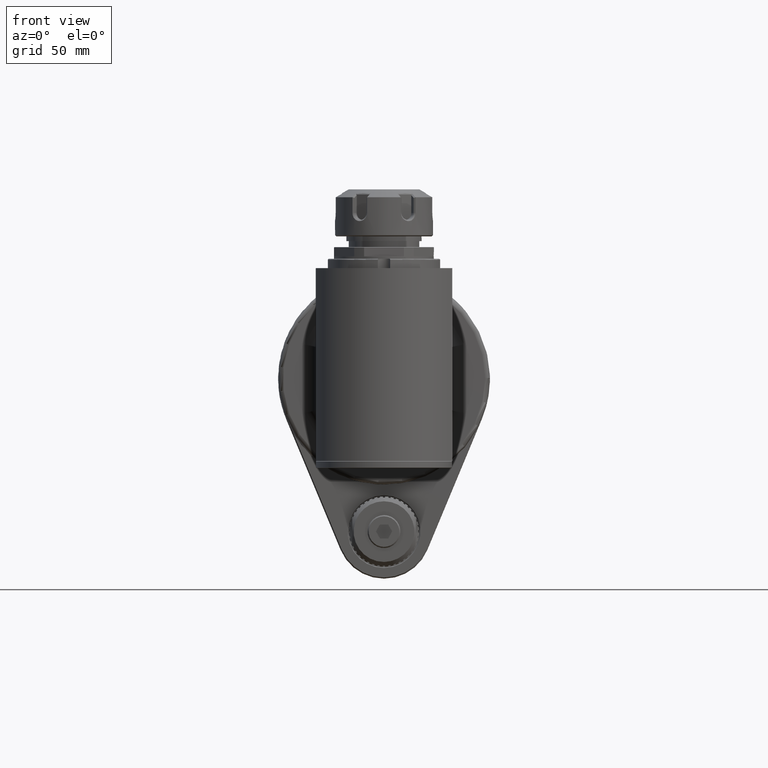
[diagram: clean part render]
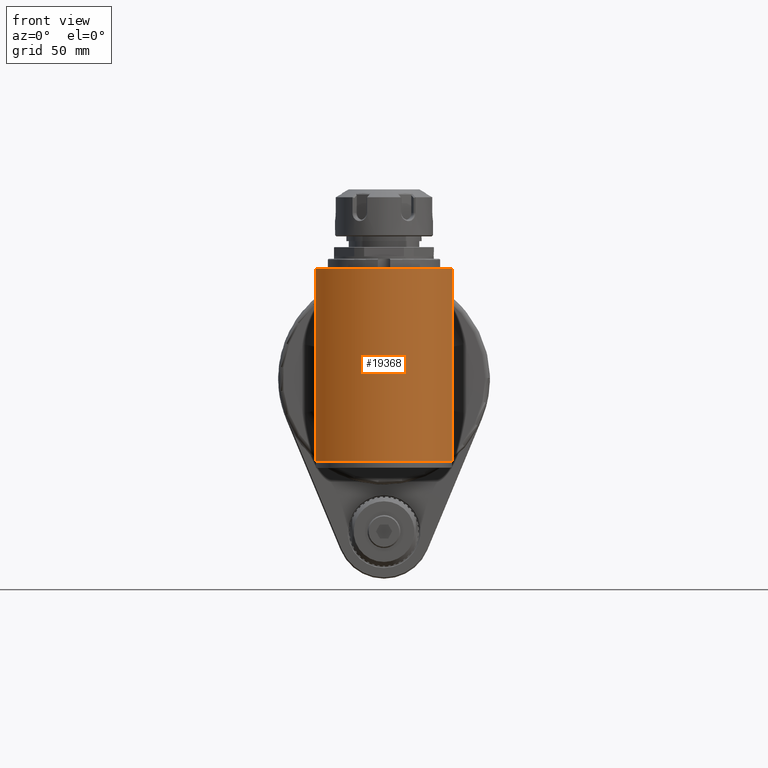
[diagram: same view with one face highlighted and labeled with its STEP entity id]
A machine part, front view. The second image highlights one B-rep face of the part: STEP entity #19368.
In plain terms, the highlighted cylindrical surface (partial cylindrical patch) has radius 32 mm, axis along (0, -0, 1).
Its self-contained STEP definition (entity closure, byte-faithful):
#1097=CIRCLE('',#20905,32.);
#1111=CIRCLE('',#20932,32.);
#1433=CYLINDRICAL_SURFACE('',#20931,32.);
#1935=FACE_OUTER_BOUND('',#3062,.T.);
#3062=EDGE_LOOP('',(#15007,#15008,#15009,#15010));
#4625=LINE('',#31174,#6556);
#4626=LINE('',#31178,#6557);
#6556=VECTOR('',#24383,82.);
#6557=VECTOR('',#24388,82.);
#8392=VERTEX_POINT('',#30743);
#8393=VERTEX_POINT('',#30745);
#8594=VERTEX_POINT('',#31172);
#8595=VERTEX_POINT('',#31176);
#10709=EDGE_CURVE('',#8393,#8392,#1097,.T.);
#10924=EDGE_CURVE('',#8594,#8392,#4625,.T.);
#10925=EDGE_CURVE('',#8594,#8595,#1111,.T.);
#10926=EDGE_CURVE('',#8393,#8595,#4626,.T.);
#15007=ORIENTED_EDGE('',*,*,#10925,.T.);
#15008=ORIENTED_EDGE('',*,*,#10926,.F.);
#15009=ORIENTED_EDGE('',*,*,#10709,.T.);
#15010=ORIENTED_EDGE('',*,*,#10924,.F.);
#19368=ADVANCED_FACE('',(#1935),#1433,.T.);
#20905=AXIS2_PLACEMENT_3D('',#30746,#24130,#24131);
#20931=AXIS2_PLACEMENT_3D('',#31175,#24384,#24385);
#20932=AXIS2_PLACEMENT_3D('',#31177,#24386,#24387);
#24130=DIRECTION('center_axis',(0.,0.,-1.));
#24131=DIRECTION('ref_axis',(0.906249999999923,-0.422742164327311,0.));
#24383=DIRECTION('',(0.,0.,1.));
#24384=DIRECTION('center_axis',(0.,0.,1.));
#24385=DIRECTION('ref_axis',(-1.,0.,0.));
#24386=DIRECTION('center_axis',(0.,0.,1.));
#24387=DIRECTION('ref_axis',(-0.906250000000018,-0.422742164327108,0.));
#24388=DIRECTION('',(0.,0.,-1.));
#30743=CARTESIAN_POINT('',(-29.,-10.52774925847,47.));
#30745=CARTESIAN_POINT('',(29.,-10.52774925849,47.));
#30746=CARTESIAN_POINT('Origin',(0.,3.,47.));
#31172=CARTESIAN_POINT('',(-29.,-10.52774925849,-35.));
#31174=CARTESIAN_POINT('',(-29.,-10.52774925849,-35.));
#31175=CARTESIAN_POINT('Origin',(0.,3.,-55.));
#31176=CARTESIAN_POINT('',(29.,-10.52774925847,-35.));
#31177=CARTESIAN_POINT('Origin',(0.,3.,-35.));
#31178=CARTESIAN_POINT('',(29.,-10.52774925849,47.));